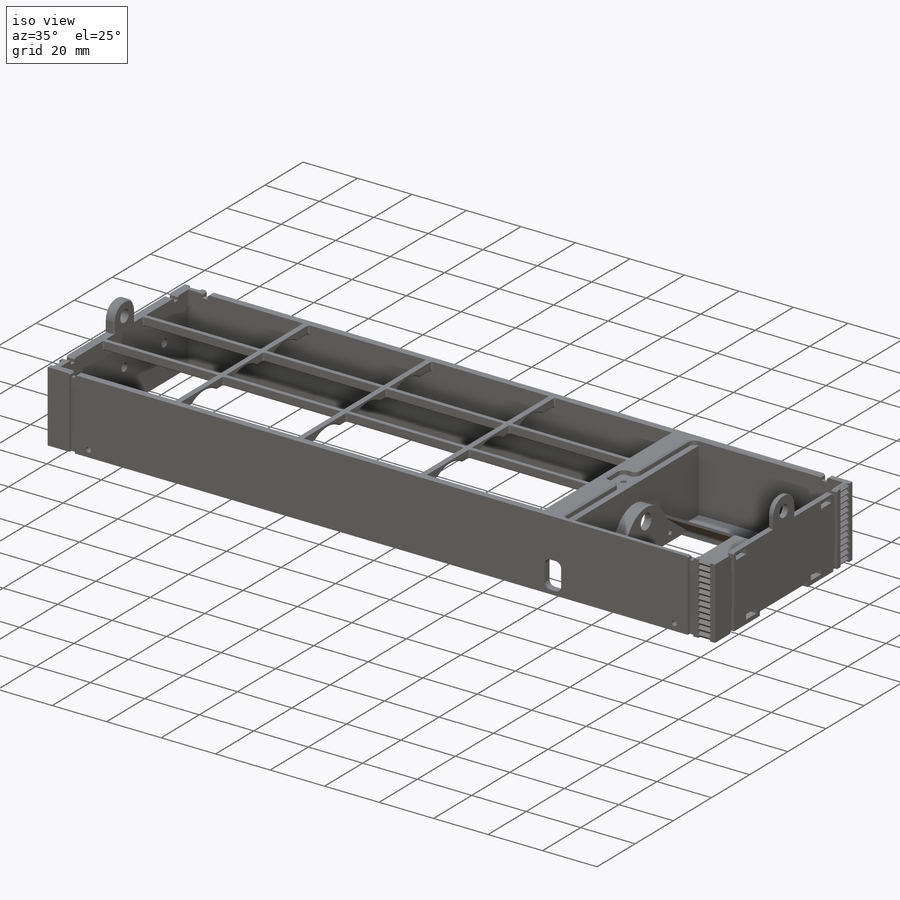
[diagram: iso view]
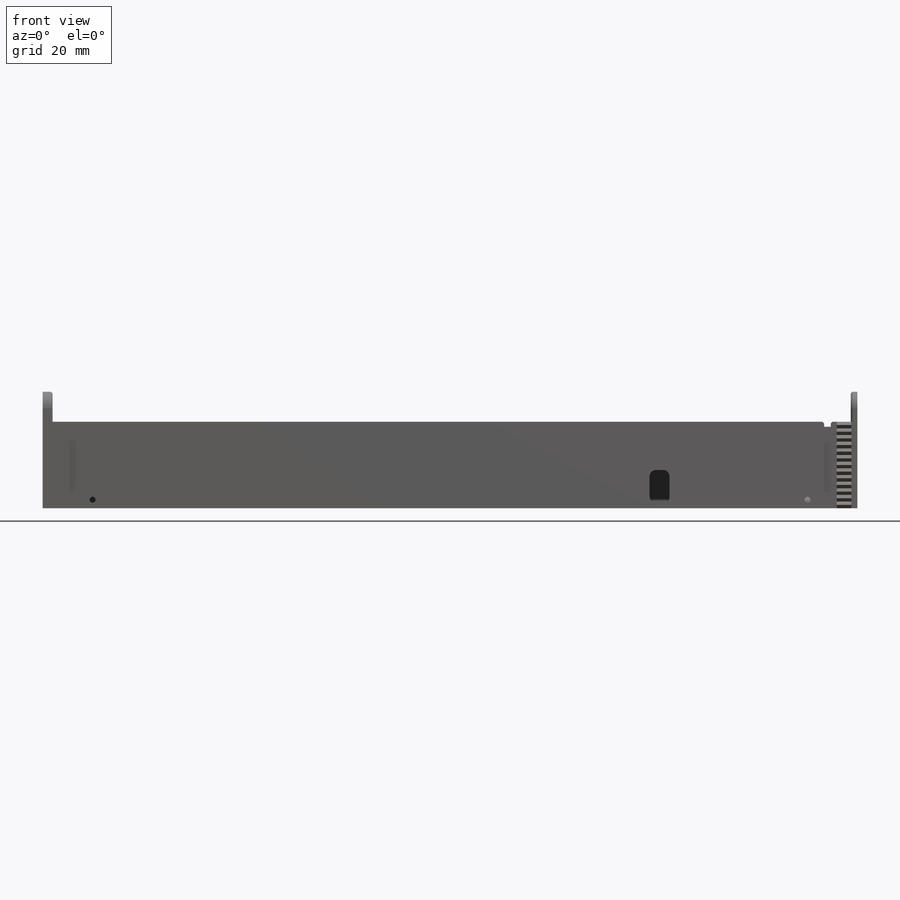
[diagram: front view]
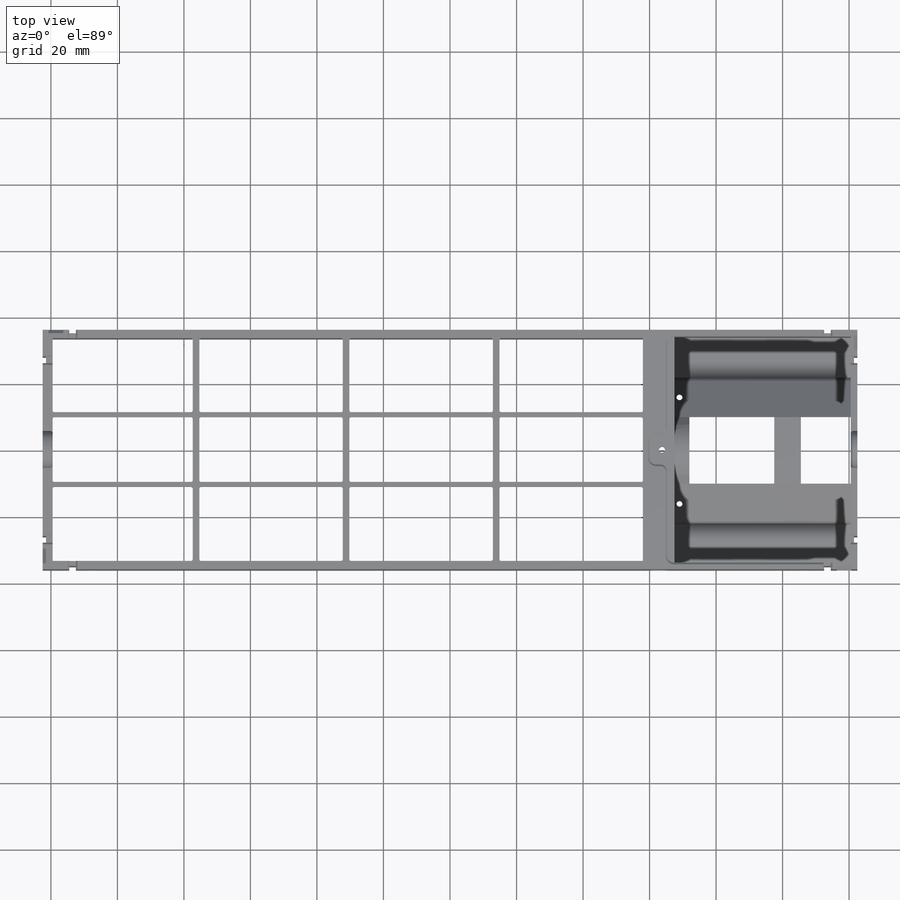
[diagram: top view]
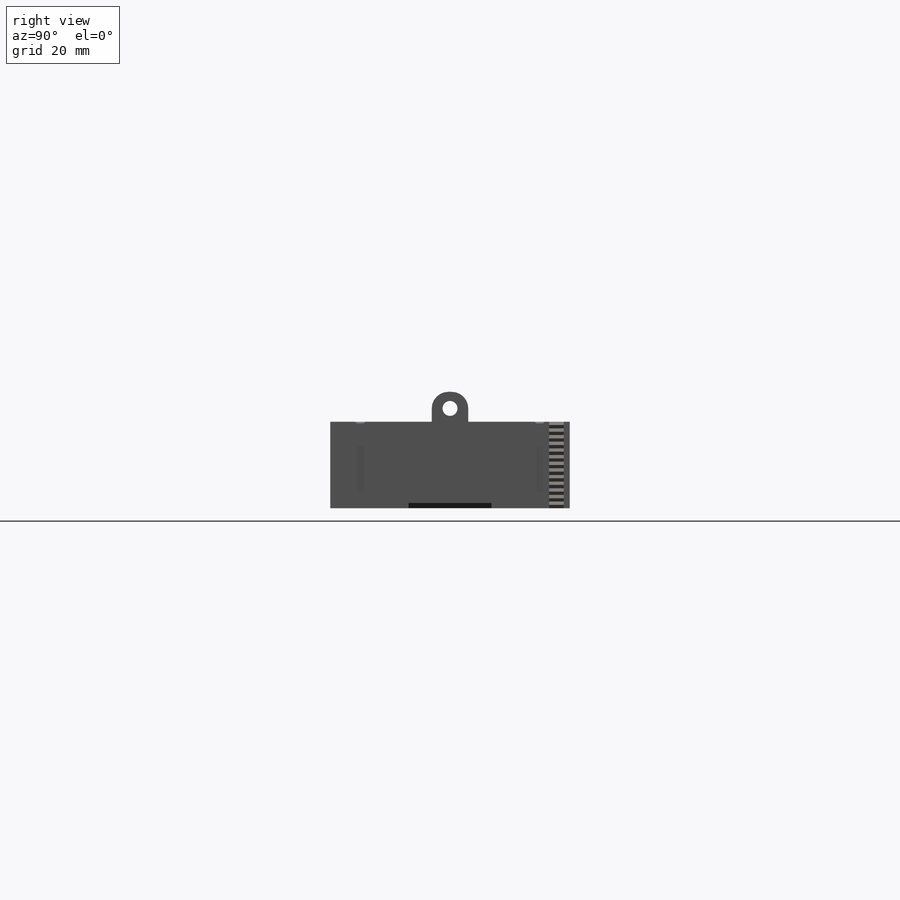
[diagram: right view]
SOLIDWORKS PART (.sldprt)
format: sldprt  version: not decoded by parser v0  size: 2,394,112 bytes
history: native  units: mm
features: sketch x41, cut_extrude x26, extrude x15, fillet x8, chamfer x5, plane x2, material x1 (+13 scaffold rows collapsed)
feature tree (111):
  scaffold x13  (default folders/planes/origin — collapsed)
  material  "PE High Density"
  sketch  "Sketch1"  dims[D1=72.0mm D2=245.0mm D3=2.0mm D4=2.0mm]
  extrude  "Boss-Extrude1"  Depth=26mm
  plane  "Plane1"
  plane  "Plane2"
  sketch  "Sketch5"  dims[c1.D1=1.0mm c1.D2=25.0mm c2.D2=45.0deg c2.D3=1.0mm c3.D2=1.0mm c3.D4=~1.414214mm c4.D4=45.0deg c4.D1=45.0deg c4.D2=1.0mm c4.D3=1.0mm c5.D4=2.0mm c5.D5=26.0mm]
  cut_extrude  "Cut-Extrude4"  Depth=4.4mm
  sketch  "Sketch8"  dims[c1.D1=1.0mm c1.D2=45.0deg c1.D3=1.0mm c1.D4=25.0mm c2.D1=45.0deg c2.D2=1.0mm c2.D3=1.0mm c2.D4=2.0mm c2.D5=26.0mm]
  cut_extrude  "Cut-Extrude5"  Depth=4.4mm
  sketch  "Sketch9"  dims[c1.D1=1.0mm c1.D2=45.0deg c1.D3=1.0mm c1.D4=25.0mm c2.D1=45.0deg c2.D2=1.0mm c2.D3=1.0mm c2.D4=2.0mm c2.D5=26.0mm]
  cut_extrude  "Cut-Extrude6"  Depth=4.4mm
  sketch  "Sketch10"  dims[c1.D1=1.0mm c1.D2=45.0deg c1.D3=1.0mm c1.D4=26.0mm c2.D1=1.0mm c2.D4=2.0mm]
  cut_extrude  "Cut-Extrude7"  Depth=4.4mm
  sketch  "Sketch11"  dims[D1=1.0mm D2=2.0mm D3=8.0mm D4=8.0mm]
  cut_extrude  "Cut-Extrude8"  [1 undecoded]
  sketch  "Sketch12"  dims[D1=1.5mm D2=53.0mm D3=0.0mm]
  extrude  "Boss-Extrude2"  [1 undecoded]
  sketch  "Sketch13"  dims[D1=2.0mm D2=6.0mm]
  extrude  "Boss-Extrude3"  [1 undecoded]
  sketch  "Sketch14"  dims[D1=3.0mm]
  cut_extrude  "Cut-Extrude9"  [1 undecoded]
  sketch  "Sketch15"  dims[D1=42.0mm]
  cut_extrude  "Cut-Extrude10"  [1 undecoded]
  sketch  "Sketch16"
  extrude  "Boss-Extrude4"  Depth=2mm
  sketch  "Sketch18"  dims[D1=1.0mm]
  extrude  "Boss-Extrude6"  [1 undecoded]
  sketch  "Sketch19"  dims[D1=15.0mm D3=2.5mm D2=1.0mm D5=1.0mm D4=0.8mm]
  extrude  "Boss-Extrude7"  [1 undecoded]
  sketch  "Sketch20"
  cut_extrude  "Cut-Extrude11"  [1 undecoded]
  sketch  "Sketch21"  dims[D1=30.0mm D2=15.0mm]
  cut_extrude  "Cut-Extrude12"  Depth=10mm
  sketch  "Sketch23"  dims[D1=0.0mm]
  extrude  "Boss-Extrude8"  Depth=4.5mm
  sketch  "Sketch24"  dims[D1=5.6mm D2=1.8mm]
  cut_extrude  "Cut-Extrude13"  [1 undecoded]
  sketch  "Sketch25"  dims[D1=1.8mm D2=32.0mm]
  cut_extrude  "Cut-Extrude14"  Depth=8mm
  sketch  "Sketch26"
  cut_extrude  "Cut-Extrude15"  Depth=1.5mm
  sketch  "Sketch27"  dims[D1=8.5mm D2=20.0mm]
  cut_extrude  "Cut-Extrude16"  Depth=3.5mm
  fillet  "Fillet1"  Radius=1mm
  sketch  "Sketch41"  dims[D1=12.0mm]
  extrude  "Boss-Extrude11"  Depth=4mm
  sketch  "Sketch45"  dims[D1=3.0mm]
  extrude  "Boss-Extrude12"  Depth=2.5mm
  sketch  "Sketch29"  dims[D1=10.0mm D2=1.0mm]
  cut_extrude  "Cut-Extrude17"  Depth=5.5mm
  fillet  "Fillet3"  Radius=1mm
  sketch  "Sketch30"  dims[D1=1.5mm D2=1.7mm D3=5.5mm]
  cut_extrude  "Cut-Extrude18"  [1 undecoded]
  sketch  "Sketch31"  dims[D1=2.0mm D2=1.5mm]
  extrude  "Boss-Extrude10"  Depth=3mm
  chamfer  "Chamfer1"  Distance=0.5mm Angle=75deg
  sketch  "Sketch33"  dims[D1=25.0mm]
  cut_extrude  "Cut-Extrude19"  Depth=1.5mm
  sketch  "Sketch35"
  cut_extrude  "Cut-Extrude21"  Depth=1.5mm
  chamfer  "Chamfer4"  Distance=0.5mm Angle=45deg
  sketch  "Sketch38"  dims[D1=1.5mm D2=10.0mm]
  cut_extrude  "Cut-Extrude23"  [1 undecoded]
  fillet  "Fillet5"  Radius=2mm
  sketch  "Sketch39"  dims[D1=18.5mm]
  cut_extrude  "Cut-Extrude24"  [1 undecoded]
  sketch  "Sketch42"  dims[c1.D1=2.0mm c1.D2=9.0mm c1.D3=~5.153882mm c2.D1=2.0mm]
  cut_extrude  "Cut-Extrude28"  Depth=2mm
  sketch  "Sketch43"
  cut_extrude  "Cut-Extrude29"  [1 undecoded]
  chamfer  "Chamfer5"  Distance=4mm Angle=45deg
  fillet  "Fillet6"  Radius=2mm
  sketch  "Sketch44"  dims[D1=1.0mm D2=1.8mm D3=1.0mm D4=5.4mm]
  cut_extrude  "Cut-Extrude30"  [1 undecoded]
  sketch  "Sketch46"  dims[D1=2.2mm]
  cut_extrude  "Cut-Extrude31"  Depth=2mm
  fillet  "Fillet8"  Radius=2mm
  chamfer  "Chamfer6"  Distance=0.5mm Angle=45deg
  sketch  "Sketch47"  dims[D1=11.0mm D2=9.0mm]
  extrude  "Boss-Extrude13"  Depth=2mm
  fillet  "Fillet9"  Radius=5mm
  sketch  "Sketch48"  dims[D1=0.0mm]
  extrude  "Boss-Extrude14"  Depth=2mm
  sketch  "Sketch49"  dims[D1=4.5mm D2=5.0mm]
  cut_extrude  "Cut-Extrude32"  [1 undecoded]
  sketch  "Sketch50"  dims[D1=1.8mm]
  cut_extrude  "Cut-Extrude33"  [1 undecoded]
  sketch  "Sketch52"  dims[D1=0.0mm D2=0.0mm]
  extrude  "Boss-Extrude15"  Depth=0.5mm
  sketch  "Sketch53"  dims[D1=0.0mm]
  extrude  "Boss-Extrude16"  Depth=0.5mm
  fillet  "Fillet2"  Radius=0.5mm
  sketch  "Sketch55"  dims[D1=0.0mm D2=0.0mm D3=0.0mm D4=0.0mm D5=0.0mm]
  extrude  "Boss-Extrude17"  Depth=1mm
  fillet  "Fillet4"  Radius=0.5mm
  sketch  "Sketch54"
  cut_extrude  "Cut-Extrude34"  [1 undecoded]
  chamfer  "Chamfer7"  Distance=0.5mm Angle=45deg
decode coverage: 72 of 95 modeling features carry decoded parameters
note: ~ marks probable driven/reference dimensions
note: 17 parameter values undecoded
summary: no parameter record found for 17 features
note: suppression state not decoded; provenance and decode notes live in map.json
